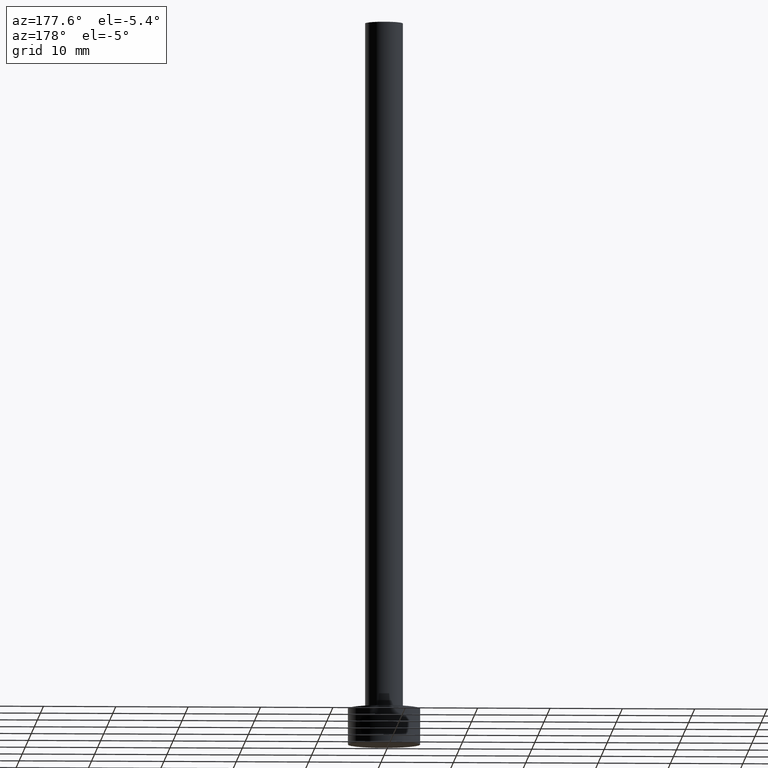
[diagram: clean part render]
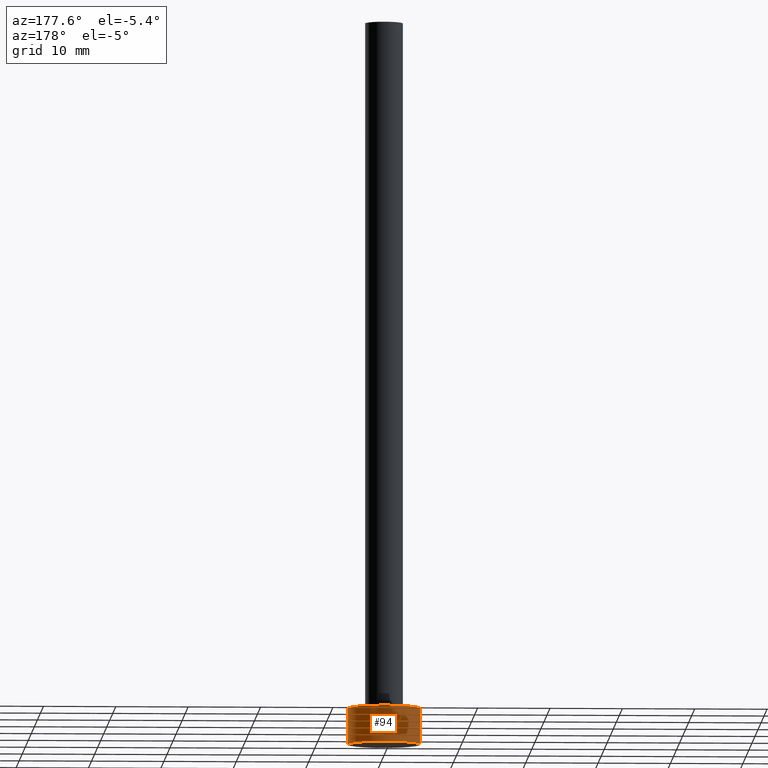
[diagram: same view with one face highlighted and labeled with its STEP entity id]
A machine part, auxiliary view. The second image highlights one B-rep face of the part: STEP entity #94.
In plain terms, the highlighted cylindrical surface (edge-blend (fillet) strip) has radius 5 mm, axis along (-0, -0, -1).
Its self-contained STEP definition (entity closure, byte-faithful):
#6 = ORIENTED_EDGE ( 'NONE', *, *, #21, .T. ) ;
#7 = AXIS2_PLACEMENT_3D ( 'NONE', #194, #87, #173 ) ;
#11 = CARTESIAN_POINT ( 'NONE',  ( 5.000000000000000000, 6.123233995736766282E-16, 5.000000000000000000 ) ) ;
#21 = EDGE_CURVE ( 'NONE', #191, #144, #40, .T. ) ;
#27 = ORIENTED_EDGE ( 'NONE', *, *, #166, .F. ) ;
#35 = VECTOR ( 'NONE', #203, 1000.000000000000000 ) ;
#40 = LINE ( 'NONE', #225, #35 ) ;
#46 = VERTEX_POINT ( 'NONE', #130 ) ;
#54 = CIRCLE ( 'NONE', #7, 5.000000000000000000 ) ;
#71 = CARTESIAN_POINT ( 'NONE',  ( 0.000000000000000000, 0.000000000000000000, 5.000000000000000000 ) ) ;
#72 = AXIS2_PLACEMENT_3D ( 'NONE', #71, #245, #248 ) ;
#87 = DIRECTION ( 'NONE',  ( 0.000000000000000000, 0.000000000000000000, 1.000000000000000000 ) ) ;
#94 = ADVANCED_FACE ( 'NONE', ( #153 ), #209, .T. ) ;
#105 = ORIENTED_EDGE ( 'NONE', *, *, #233, .T. ) ;
#111 = AXIS2_PLACEMENT_3D ( 'NONE', #197, #227, #149 ) ;
#112 = CARTESIAN_POINT ( 'NONE',  ( -5.000000000000000000, 0.000000000000000000, 5.000000000000000000 ) ) ;
#130 = CARTESIAN_POINT ( 'NONE',  ( -5.000000000000000000, 0.000000000000000000, 0.000000000000000000 ) ) ;
#144 = VERTEX_POINT ( 'NONE', #229 ) ;
#146 = CARTESIAN_POINT ( 'NONE',  ( -5.000000000000000000, 0.000000000000000000, 5.000000000000000000 ) ) ;
#149 = DIRECTION ( 'NONE',  ( 1.000000000000000000, 0.000000000000000000, 0.000000000000000000 ) ) ;
#153 = FACE_OUTER_BOUND ( 'NONE', #221, .T. ) ;
#161 = VECTOR ( 'NONE', #242, 1000.000000000000000 ) ;
#166 = EDGE_CURVE ( 'NONE', #170, #46, #195, .T. ) ;
#170 = VERTEX_POINT ( 'NONE', #146 ) ;
#173 = DIRECTION ( 'NONE',  ( 1.000000000000000000, 0.000000000000000000, 0.000000000000000000 ) ) ;
#185 = ORIENTED_EDGE ( 'NONE', *, *, #188, .F. ) ;
#188 = EDGE_CURVE ( 'NONE', #191, #170, #249, .T. ) ;
#191 = VERTEX_POINT ( 'NONE', #11 ) ;
#194 = CARTESIAN_POINT ( 'NONE',  ( 0.000000000000000000, 0.000000000000000000, 0.000000000000000000 ) ) ;
#195 = LINE ( 'NONE', #112, #161 ) ;
#197 = CARTESIAN_POINT ( 'NONE',  ( 0.000000000000000000, 0.000000000000000000, 5.000000000000000000 ) ) ;
#203 = DIRECTION ( 'NONE',  ( -0.000000000000000000, -0.000000000000000000, -1.000000000000000000 ) ) ;
#209 = CYLINDRICAL_SURFACE ( 'NONE', #72, 5.000000000000000000 ) ;
#221 = EDGE_LOOP ( 'NONE', ( #185, #6, #105, #27 ) ) ;
#225 = CARTESIAN_POINT ( 'NONE',  ( 5.000000000000000000, 6.123233995736766282E-16, 5.000000000000000000 ) ) ;
#227 = DIRECTION ( 'NONE',  ( 0.000000000000000000, 0.000000000000000000, 1.000000000000000000 ) ) ;
#229 = CARTESIAN_POINT ( 'NONE',  ( 5.000000000000000000, 6.123233995736766282E-16, 0.000000000000000000 ) ) ;
#233 = EDGE_CURVE ( 'NONE', #144, #46, #54, .T. ) ;
#242 = DIRECTION ( 'NONE',  ( -0.000000000000000000, -0.000000000000000000, -1.000000000000000000 ) ) ;
#245 = DIRECTION ( 'NONE',  ( -0.000000000000000000, -0.000000000000000000, -1.000000000000000000 ) ) ;
#248 = DIRECTION ( 'NONE',  ( -1.000000000000000000, 0.000000000000000000, 0.000000000000000000 ) ) ;
#249 = CIRCLE ( 'NONE', #111, 5.000000000000000000 ) ;